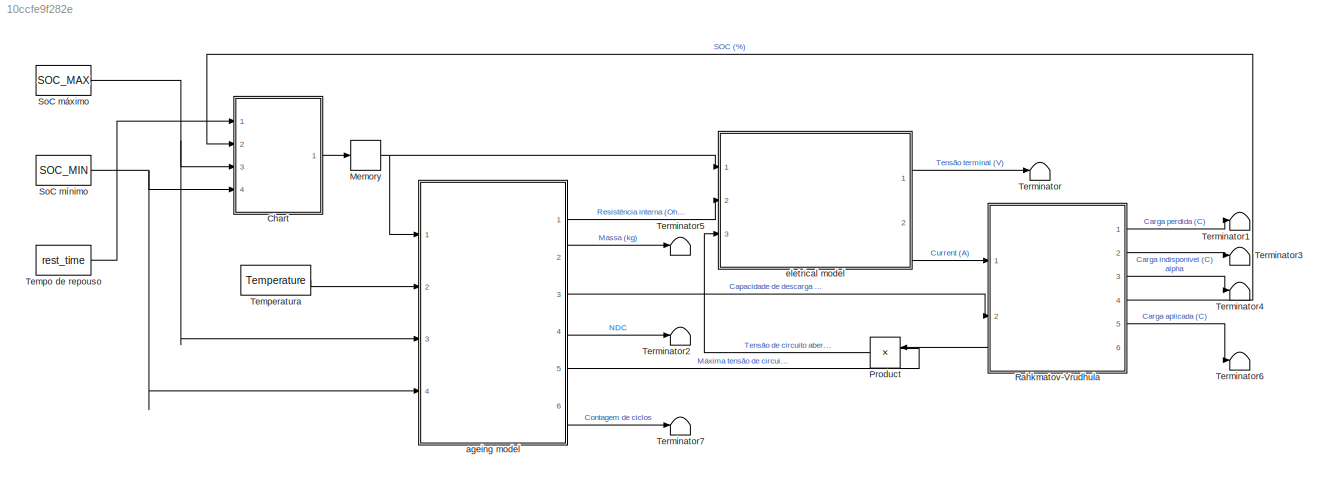
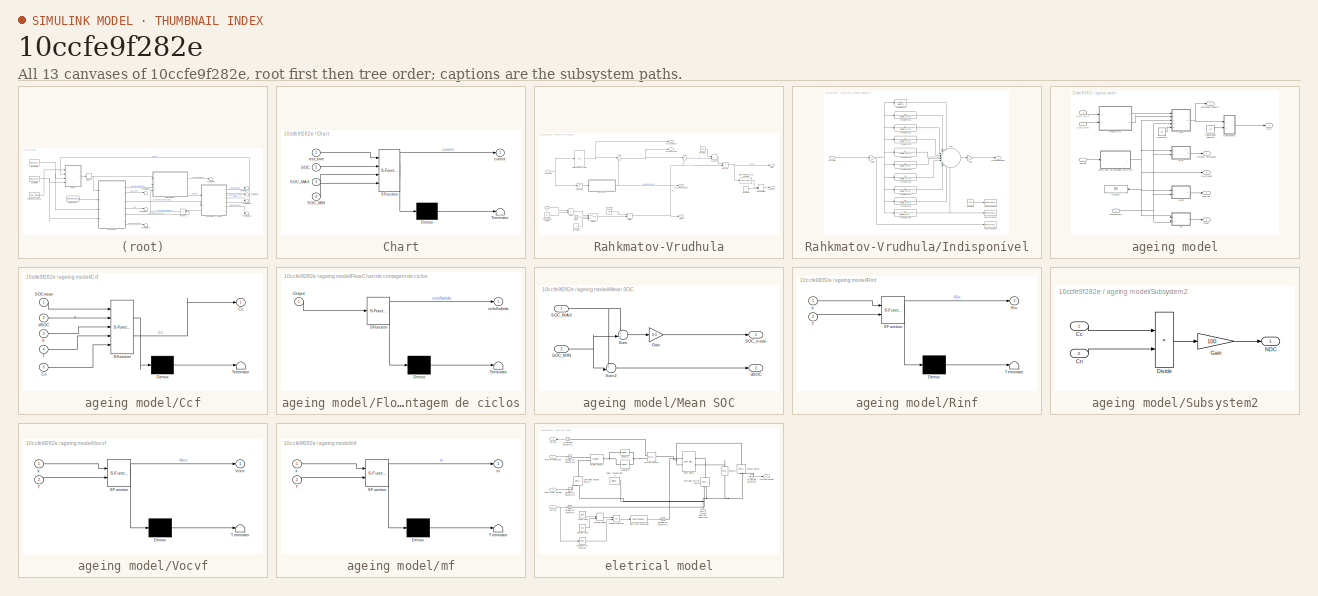
[diagram: thumbnail index - all 13 canvases of the model, root first then tree order]
MODEL slx_10ccfe9f282e
KIND model
CONFIG AbsTol = auto
CONFIG EnableMultiTasking = off
CONFIG FixedStep = 1
CONFIG MaxStep = 1
CONFIG MinStep = auto
CONFIG PostLoadFcn = load('input_modelo_bateria.mat')
CONFIG RelTol = 1e-3
CONFIG SampleTimeConstraint = Unconstrained
CONFIG SolverName = VariableStepAuto
CONFIG StartTime = 0.0
CONFIG StopTime = 7e4
BLOCK [SubSystem] Chart
  ErrorFcn = Stateflow.Translate.translate
  PermitHierarchicalResolution = ExplicitOnly
  PortSchema = {"entries":[{"content":{"sides":[{"content":{"connectorIds":["In2","In3","In4","In1"]},"type":"ConnectorPlacement.EquallySpacedRectSide","uuid":"b79e6304-446b-4da0-b841-6a7e0125cfd5"},{"content":{"connectorIds":["Out1"],"side":"RIGHT"},"type":"ConnectorPlacement.EquallySpacedRectSide","uuid":"907ab61a-1d0a-45c7-8983-f54ad408e9d5"},{"content":{"connectorIds":[],"side":"TOP"},"type":"ConnectorPlacem...<+258ch>
  Ports = [4, 1]
  RequestExecContextInheritance = off
  SFBlockType = Chart
  TreatAsAtomicUnit = on
BLOCK [Demux] Chart/ Demux 
  Outputs = 1
  Ports = [1, 1]
BLOCK [S-Function] Chart/ SFunction 
  EnableBusSupport = on
  FunctionName = sf_sfun
  PortCounts = [4 2]
  Ports = [4, 2]
  SFcnIsStateOwnerBlock = off
  SFunctionDeploymentMode = off
  Tag = Stateflow S-Function 6
BLOCK [Terminator] Chart/ Terminator 
BLOCK [Inport] Chart/SOC
  Port = 2
BLOCK [Inport] Chart/SOC_MAX
  Port = 3
BLOCK [Inport] Chart/SOC_MIN
  Port = 4
BLOCK [Outport] Chart/current
BLOCK [Inport] Chart/rest_time
BLOCK [Memory] Memory
BLOCK [Product] Product
  Ports = [2, 1]
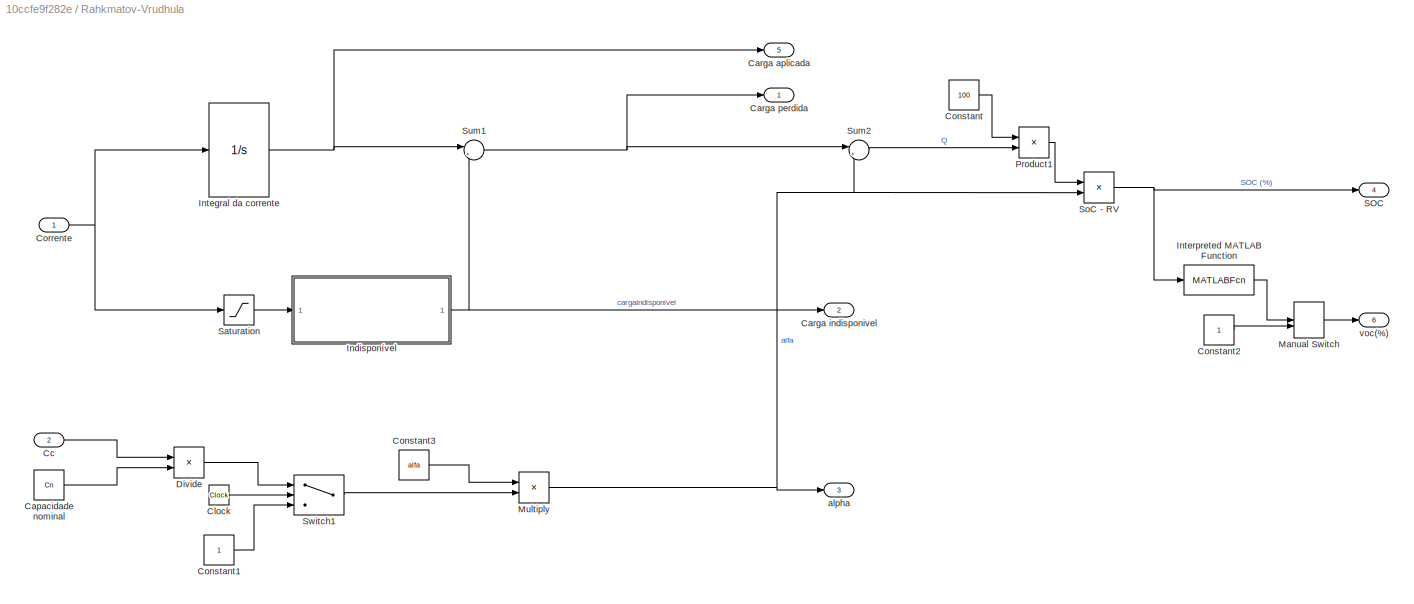
BLOCK [SubSystem] Rahkmatov-Vrudhula
  NameLocation = top
  PortSchema = {"entries":[{"content":{"sides":[{"content":{"connectorIds":["In1","In2","Out6"]},"type":"ConnectorPlacement.EquallySpacedRectSide","uuid":"83f3e873-db9f-47d1-b7c3-7eda48a10b32"},{"content":{"connectorIds":["Out1","Out2","Out3","Out4","Out5"],"side":"RIGHT"},"type":"ConnectorPlacement.EquallySpacedRectSide","uuid":"48ac6012-cdb4-4752-bc48-afa50bea9f0a"},{"content":{"connectorIds":[],"side":"TOP"},...<+281ch>
  Ports = [2, 6]
  RequestExecContextInheritance = off
BLOCK [Constant] Rahkmatov-Vrudhula/Capacidade nominal
  Value = Cn
BLOCK [Outport] Rahkmatov-Vrudhula/Carga aplicada
  Port = 5
  VectorParamsAs1DForOutWhenUnconnected = off
BLOCK [Outport] Rahkmatov-Vrudhula/Carga indisponivel
  Port = 2
  VectorParamsAs1DForOutWhenUnconnected = off
BLOCK [Outport] Rahkmatov-Vrudhula/Carga perdida
  VectorParamsAs1DForOutWhenUnconnected = off
BLOCK [Inport] Rahkmatov-Vrudhula/Cc
  Port = 2
BLOCK [Clock] Rahkmatov-Vrudhula/Clock
BLOCK [Constant] Rahkmatov-Vrudhula/Constant
  Value = 100
BLOCK [Constant] Rahkmatov-Vrudhula/Constant1
BLOCK [Constant] Rahkmatov-Vrudhula/Constant2
BLOCK [Constant] Rahkmatov-Vrudhula/Constant3
  Value = alfa
BLOCK [Inport] Rahkmatov-Vrudhula/Corrente
BLOCK [Product] Rahkmatov-Vrudhula/Divide
  Inputs = */
  Ports = [2, 1]
BLOCK [SubSystem] Rahkmatov-Vrudhula/Indisponível
  Ports = [1, 1]
  RequestExecContextInheritance = off
BLOCK [Constant] Rahkmatov-Vrudhula/Indisponível/Constant3
  Value = beta
BLOCK [Gain] Rahkmatov-Vrudhula/Indisponível/Gain
  Gain = 2
BLOCK [Gain] Rahkmatov-Vrudhula/Indisponível/Gain1
BLOCK [Sum] Rahkmatov-Vrudhula/Indisponível/Sum
  Inputs = |++++++++++
  Ports = [10, 1]
BLOCK [ToWorkspace] Rahkmatov-Vrudhula/Indisponível/To Workspace1
  FixptAsFi = on
  MaxDataPoints = inf
  Ports = [1]
  SampleTime = -1
  Save2DSignal = 2-D array (concatenate along first dimension)
  VariableName = correnteout
BLOCK [ToWorkspace] Rahkmatov-Vrudhula/Indisponível/To Workspace2
  FixptAsFi = on
  MaxDataPoints = inf
  Ports = [1]
  SampleTime = -1
  Save2DSignal = 2-D array (concatenate along first dimension)
  VariableName = transferfcn
BLOCK [ToWorkspace] Rahkmatov-Vrudhula/Indisponível/To Workspace3
  FixptAsFi = on
  MaxDataPoints = inf
  Ports = [1]
  SampleTime = -1
  Save2DSignal = 2-D array (concatenate along first dimension)
  VariableName = betaout
BLOCK [TransferFcn] Rahkmatov-Vrudhula/Indisponível/Transfer Fcn
  Denominator = [1 beta^2]
BLOCK [TransferFcn] Rahkmatov-Vrudhula/Indisponível/Transfer Fcn1
  Denominator = [1 beta^2*2^2]
BLOCK [TransferFcn] Rahkmatov-Vrudhula/Indisponível/Transfer Fcn2
  Denominator = [1 beta^2*3^2]
BLOCK [TransferFcn] Rahkmatov-Vrudhula/Indisponível/Transfer Fcn3
  Denominator = [1 beta^2*4^2]
BLOCK [TransferFcn] Rahkmatov-Vrudhula/Indisponível/Transfer Fcn4
  Denominator = [1 beta^2*5^2]
BLOCK [TransferFcn] Rahkmatov-Vrudhula/Indisponível/Transfer Fcn5
  Denominator = [1 beta^2*6^2]
BLOCK [TransferFcn] Rahkmatov-Vrudhula/Indisponível/Transfer Fcn6
  Denominator = [1 beta^2*7^2]
BLOCK [TransferFcn] Rahkmatov-Vrudhula/Indisponível/Transfer Fcn7
  Denominator = [1 beta^2*8^2]
BLOCK [TransferFcn] Rahkmatov-Vrudhula/Indisponível/Transfer Fcn8
  Denominator = [1 beta^2*9^2]
BLOCK [TransferFcn] Rahkmatov-Vrudhula/Indisponível/Transfer Fcn9
  Denominator = [1 beta^2*10^2]
BLOCK [Outport] Rahkmatov-Vrudhula/Indisponível/cargaIndisponivel
  VectorParamsAs1DForOutWhenUnconnected = off
BLOCK [Inport] Rahkmatov-Vrudhula/Indisponível/corrente
BLOCK [Integrator] Rahkmatov-Vrudhula/Integral da corrente
  LimitOutput = on
  LowerSaturationLimit = -alfa
  Ports = [1, 1]
  UpperSaturationLimit = 0
BLOCK [MATLABFcn] Rahkmatov-Vrudhula/Interpreted MATLAB Function
  MATLABFcn = feval(voc_fit,u)
  Ports = [1, 1]
BLOCK [ManualSwitch] Rahkmatov-Vrudhula/Manual Switch
BLOCK [Product] Rahkmatov-Vrudhula/Multiply
  Ports = [2, 1]
BLOCK [Product] Rahkmatov-Vrudhula/Product1
  Ports = [2, 1]
BLOCK [Outport] Rahkmatov-Vrudhula/SOC
  Port = 4
BLOCK [Saturate] Rahkmatov-Vrudhula/Saturation
  LowerLimit = -Inf
  UpperLimit = 0
BLOCK [Product] Rahkmatov-Vrudhula/SoC - RV
  Inputs = */
  Ports = [2, 1]
BLOCK [Sum] Rahkmatov-Vrudhula/Sum1
  Inputs = |++
  Ports = [2, 1]
BLOCK [Sum] Rahkmatov-Vrudhula/Sum2
  Inputs = |++
  Ports = [2, 1]
BLOCK [Switch] Rahkmatov-Vrudhula/Switch1
  InputSameDT = off
  SaturateOnIntegerOverflow = off
BLOCK [Outport] Rahkmatov-Vrudhula/alpha
  Port = 3
  VectorParamsAs1DForOutWhenUnconnected = off
BLOCK [Outport] Rahkmatov-Vrudhula/voc(%)
  Port = 6
BLOCK [Constant] SoC máximo
  Value = SOC_MAX
BLOCK [Constant] SoC mínimo
  Value = SOC_MIN
BLOCK [Constant] Temperatura
  Value = Temperature
BLOCK [Constant] Tempo de repouso
  Value = rest_time
BLOCK [Terminator] Terminator
BLOCK [Terminator] Terminator1
BLOCK [Terminator] Terminator2
BLOCK [Terminator] Terminator3
BLOCK [Terminator] Terminator4
BLOCK [Terminator] Terminator5
BLOCK [Terminator] Terminator6
BLOCK [Terminator] Terminator7
BLOCK [SubSystem] ageing model
  NameLocation = top
  Ports = [4, 6]
  RequestExecContextInheritance = off
BLOCK [Constant] ageing model/Capacidade nominal
  Value = Cn
BLOCK [SubSystem] ageing model/Ccf
  ErrorFcn = Stateflow.Translate.translate
  PermitHierarchicalResolution = ExplicitOnly
  Ports = [5, 1]
  RequestExecContextInheritance = off
  SFBlockType = MATLAB Function
  TreatAsAtomicUnit = on
BLOCK [Demux] ageing model/Ccf/ Demux 
  Outputs = 1
  Ports = [1, 1]
BLOCK [S-Function] ageing model/Ccf/ SFunction 
  EnableBusSupport = on
  FunctionName = sf_sfun
  PortCounts = [5 2]
  Ports = [5, 2]
  SFcnIsStateOwnerBlock = off
  SFunctionDeploymentMode = off
  Tag = Stateflow S-Function 2
BLOCK [Terminator] ageing model/Ccf/ Terminator 
BLOCK [Outport] ageing model/Ccf/Cc
BLOCK [Inport] ageing model/Ccf/Cn
  Port = 5
BLOCK [Inport] ageing model/Ccf/SOCmean
BLOCK [Inport] ageing model/Ccf/T
  Port = 4
BLOCK [Inport] ageing model/Ccf/dSOC
  Port = 2
BLOCK [Inport] ageing model/Ccf/k
  Port = 3
BLOCK [Constant] ageing model/Constant2
  Value = Cn
BLOCK [Display] ageing model/Display
  Decimation = 1
  Ports = [1]
BLOCK [SubSystem] ageing model/FlowChart de contagem de ciclos
  ErrorFcn = Stateflow.Translate.translate
  PermitHierarchicalResolution = ExplicitOnly
  Ports = [1, 1]
  RequestExecContextInheritance = off
  SFBlockType = Chart
  TreatAsAtomicUnit = on
BLOCK [Demux] ageing model/FlowChart de contagem de ciclos/ Demux 
  Outputs = 1
  Ports = [1, 1]
BLOCK [S-Function] ageing model/FlowChart de contagem de ciclos/ SFunction 
  EnableBusSupport = on
  FunctionName = sf_sfun
  PortCounts = [1 2]
  Ports = [1, 2]
  SFcnIsStateOwnerBlock = off
  SFunctionDeploymentMode = off
  Tag = Stateflow S-Function 3
BLOCK [Terminator] ageing model/FlowChart de contagem de ciclos/ Terminator 
BLOCK [Outport] ageing model/FlowChart de contagem de ciclos/cicloSubida
  VectorParamsAs1DForOutWhenUnconnected = off
BLOCK [Inport] ageing model/FlowChart de contagem de ciclos/iOutput
BLOCK [SubSystem] ageing model/Mean SOC
  Ports = [2, 2]
  RequestExecContextInheritance = off
BLOCK [Gain] ageing model/Mean SOC/Gain
  Gain = 0.5
BLOCK [Inport] ageing model/Mean SOC/SOC_MAX
BLOCK [Inport] ageing model/Mean SOC/SOC_MIN
  Port = 2
BLOCK [Outport] ageing model/Mean SOC/SOC_mean
BLOCK [Sum] ageing model/Mean SOC/Sum
  Inputs = ++|
  Ports = [2, 1]
BLOCK [Sum] ageing model/Mean SOC/Sum2
  Inputs = +-|
  Ports = [2, 1]
BLOCK [Outport] ageing model/Mean SOC/dSOC
  Port = 2
BLOCK [Outport] ageing model/NDC
  Port = 4
BLOCK [SubSystem] ageing model/Rinf
  ErrorFcn = Stateflow.Translate.translate
  PermitHierarchicalResolution = ExplicitOnly
  Ports = [2, 1]
  RequestExecContextInheritance = off
  SFBlockType = MATLAB Function
  TreatAsAtomicUnit = on
BLOCK [Demux] ageing model/Rinf/ Demux 
  Outputs = 1
  Ports = [1, 1]
BLOCK [S-Function] ageing model/Rinf/ SFunction 
  EnableBusSupport = on
  FunctionName = sf_sfun
  PortCounts = [2 2]
  Ports = [2, 2]
  SFcnIsStateOwnerBlock = off
  SFunctionDeploymentMode = off
  Tag = Stateflow S-Function 1
BLOCK [Terminator] ageing model/Rinf/ Terminator 
BLOCK [Outport] ageing model/Rinf/Rin
BLOCK [Inport] ageing model/Rinf/T
  Port = 2
BLOCK [Inport] ageing model/Rinf/k
BLOCK [Inport] ageing model/SOC_MAX
  Port = 3
BLOCK [Inport] ageing model/SOC_MIN
  Port = 4
BLOCK [SubSystem] ageing model/Subsystem2
  Ports = [2, 1]
  RequestExecContextInheritance = off
BLOCK [Inport] ageing model/Subsystem2/Cc
BLOCK [Inport] ageing model/Subsystem2/Cn
  Port = 2
BLOCK [Product] ageing model/Subsystem2/Divide
  Inputs = */
  Ports = [2, 1]
BLOCK [Gain] ageing model/Subsystem2/Gain
  Gain = 100
BLOCK [Outport] ageing model/Subsystem2/NDC
BLOCK [SubSystem] ageing model/Vocvf
  ErrorFcn = Stateflow.Translate.translate
  PermitHierarchicalResolution = ExplicitOnly
  Ports = [2, 1]
  RequestExecContextInheritance = off
  SFBlockType = MATLAB Function
  TreatAsAtomicUnit = on
BLOCK [Demux] ageing model/Vocvf/ Demux 
  Outputs = 1
  Ports = [1, 1]
BLOCK [S-Function] ageing model/Vocvf/ SFunction 
  EnableBusSupport = on
  FunctionName = sf_sfun
  PortCounts = [2 2]
  Ports = [2, 2]
  SFcnIsStateOwnerBlock = off
  SFunctionDeploymentMode = off
  Tag = Stateflow S-Function 4
BLOCK [Terminator] ageing model/Vocvf/ Terminator 
BLOCK [Inport] ageing model/Vocvf/T
  Port = 2
BLOCK [Outport] ageing model/Vocvf/Vocv
BLOCK [Inport] ageing model/Vocvf/k
BLOCK [Inport] ageing model/current
BLOCK [Outport] ageing model/cycle count
  NameLocation = right
  Port = 6
BLOCK [Outport] ageing model/discharge capacity
  Port = 3
BLOCK [Outport] ageing model/internal resistance
  NameLocation = right
BLOCK [Outport] ageing model/mass
  Port = 2
BLOCK [Outport] ageing model/max voc
  Port = 5
BLOCK [SubSystem] ageing model/mf
  ErrorFcn = Stateflow.Translate.translate
  PermitHierarchicalResolution = ExplicitOnly
  Ports = [2, 1]
  RequestExecContextInheritance = off
  SFBlockType = MATLAB Function
  TreatAsAtomicUnit = on
BLOCK [Demux] ageing model/mf/ Demux 
  Outputs = 1
  Ports = [1, 1]
BLOCK [S-Function] ageing model/mf/ SFunction 
  EnableBusSupport = on
  FunctionName = sf_sfun
  PortCounts = [2 2]
  Ports = [2, 2]
  SFcnIsStateOwnerBlock = off
  SFunctionDeploymentMode = off
  Tag = Stateflow S-Function 5
BLOCK [Terminator] ageing model/mf/ Terminator 
BLOCK [Inport] ageing model/mf/T
  Port = 2
BLOCK [Inport] ageing model/mf/k
BLOCK [Outport] ageing model/mf/m
BLOCK [Inport] ageing model/temperature
  Port = 2
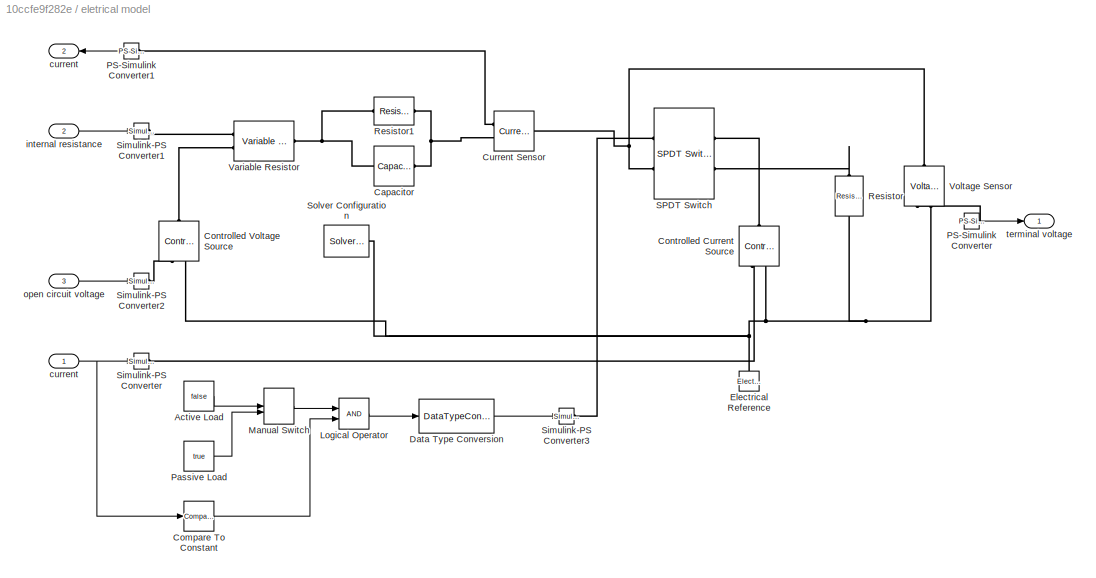
BLOCK [SubSystem] eletrical model
  NameLocation = top
  Ports = [3, 2]
  RequestExecContextInheritance = off
BLOCK [Constant] eletrical model/Active Load
  Value = false
BLOCK [Reference] eletrical model/Capacitor  REF=fl_lib/Electrical/Electrical Elements/Capacitor
  Ports = [0, 0, 0, 0, 0, 1, 1]
  SourceBlock = fl_lib/Electrical/Electrical Elements/Capacitor
  SourceProductBaseCode = PW,SS,VE
  SourceType = Capacitor
BLOCK [Reference] eletrical model/Compare To Constant  REF=simulink/Logic and Bit
Operations/Compare
To Constant
  Ports = [1, 1]
  SourceBlock = simulink/Logic and Bit\nOperations/Compare\nTo Constant
  SourceProductBaseCode = SL
  SourceType = Compare To Constant
BLOCK [Reference] eletrical model/Controlled Current Source  REF=fl_lib/Electrical/Electrical Sources/Controlled Current
Source
  NameLocation = left
  Ports = [0, 0, 0, 0, 0, 1, 2]
  SourceBlock = fl_lib/Electrical/Electrical Sources/Controlled Current\nSource
  SourceProductBaseCode = PW,SS,VE
  SourceType = Controlled Current\nSource
BLOCK [Reference] eletrical model/Controlled Voltage Source  REF=fl_lib/Electrical/Electrical Sources/Controlled Voltage
Source
  NameLocation = right
  Ports = [0, 0, 0, 0, 0, 1, 2]
  SourceBlock = fl_lib/Electrical/Electrical Sources/Controlled Voltage\nSource
  SourceProductBaseCode = PW,SS,VE
  SourceType = Controlled Voltage\nSource
BLOCK [Reference] eletrical model/Current Sensor  REF=fl_lib/Electrical/Electrical Sensors/Current Sensor
  Ports = [0, 0, 0, 0, 0, 1, 2]
  SourceBlock = fl_lib/Electrical/Electrical Sensors/Current Sensor
  SourceProductBaseCode = PW,SS,VE
  SourceType = Current Sensor
BLOCK [DataTypeConversion] eletrical model/Data Type Conversion
  RndMeth = Floor
  SaturateOnIntegerOverflow = off
BLOCK [Reference] eletrical model/Electrical Reference  REF=fl_lib/Electrical/Electrical Elements/Electrical Reference
  NameLocation = right
  Ports = [0, 0, 0, 0, 0, 1]
  SourceBlock = fl_lib/Electrical/Electrical Elements/Electrical Reference
  SourceProductBaseCode = PW,SS,VE
  SourceType = Electrical Reference
BLOCK [Logic] eletrical model/Logical Operator
  AllPortsSameDT = off
  OutDataTypeStr = boolean
  Ports = [2, 1]
BLOCK [ManualSwitch] eletrical model/Manual Switch
BLOCK [Reference] eletrical model/PS-Simulink Converter  REF=nesl_utility/PS-Simulink
Converter
  Ports = [0, 1, 0, 0, 0, 1]
  SourceBlock = nesl_utility/PS-Simulink\nConverter
  SourceProductBaseCode = SS,PW,VE
  SourceType = PS-Simulink\nConverter
BLOCK [Reference] eletrical model/PS-Simulink Converter1  REF=nesl_utility/PS-Simulink
Converter
  Ports = [0, 1, 0, 0, 0, 1]
  SourceBlock = nesl_utility/PS-Simulink\nConverter
  SourceProductBaseCode = SS,PW,VE
  SourceType = PS-Simulink\nConverter
BLOCK [Constant] eletrical model/Passive Load
  Value = true
BLOCK [Reference] eletrical model/Resistor  REF=ee_lib/Passive/Resistor
  NameLocation = left
  Ports = [0, 0, 0, 0, 0, 1, 1]
  SourceBlock = ee_lib/Passive/Resistor
  SourceProductBaseCode = PS
  SourceType = Resistor
BLOCK [Reference] eletrical model/Resistor1  REF=fl_lib/Electrical/Electrical Elements/Resistor
  Ports = [0, 0, 0, 0, 0, 1, 1]
  SourceBlock = fl_lib/Electrical/Electrical Elements/Resistor
  SourceProductBaseCode = PW,SS,VE
  SourceType = Resistor
BLOCK [Reference] eletrical model/SPDT Switch  REF=ee_lib/Switches & Breakers/SPDT Switch
  Ports = [0, 0, 0, 0, 0, 2, 2]
  SourceBlock = ee_lib/Switches & Breakers/SPDT Switch
  SourceProductBaseCode = PS
  SourceType = SPDT Switch
BLOCK [Reference] eletrical model/Simulink-PS Converter  REF=nesl_utility/Simulink-PS
Converter
  Ports = [1, 0, 0, 0, 0, 0, 1]
  SourceBlock = nesl_utility/Simulink-PS\nConverter
  SourceProductBaseCode = SS,PW,VE
  SourceType = Simulink-PS\nConverter
BLOCK [Reference] eletrical model/Simulink-PS Converter1  REF=nesl_utility/Simulink-PS
Converter
  Ports = [1, 0, 0, 0, 0, 0, 1]
  SourceBlock = nesl_utility/Simulink-PS\nConverter
  SourceProductBaseCode = SS,PW,VE
  SourceType = Simulink-PS\nConverter
BLOCK [Reference] eletrical model/Simulink-PS Converter2  REF=nesl_utility/Simulink-PS
Converter
  Ports = [1, 0, 0, 0, 0, 0, 1]
  SourceBlock = nesl_utility/Simulink-PS\nConverter
  SourceProductBaseCode = SS,PW,VE
  SourceType = Simulink-PS\nConverter
BLOCK [Reference] eletrical model/Simulink-PS Converter3  REF=nesl_utility/Simulink-PS
Converter
  Ports = [1, 0, 0, 0, 0, 0, 1]
  SourceBlock = nesl_utility/Simulink-PS\nConverter
  SourceProductBaseCode = SS,PW,VE
  SourceType = Simulink-PS\nConverter
BLOCK [Reference] eletrical model/Solver Configuration  REF=nesl_utility/Solver
Configuration
  Ports = [0, 0, 0, 0, 0, 0, 1]
  SourceBlock = nesl_utility/Solver\nConfiguration
  SourceProductBaseCode = SS,PW,VE
  SourceType = Solver\nConfiguration
BLOCK [Reference] eletrical model/Variable Resistor  REF=fl_lib/Electrical/Electrical Elements/Variable Resistor
  Ports = [0, 0, 0, 0, 0, 2, 1]
  SourceBlock = fl_lib/Electrical/Electrical Elements/Variable Resistor
  SourceProductBaseCode = PW,SS,VE
  SourceType = Variable Resistor
BLOCK [Reference] eletrical model/Voltage Sensor  REF=fl_lib/Electrical/Electrical Sensors/Voltage Sensor
  NameLocation = right
  Ports = [0, 0, 0, 0, 0, 1, 2]
  SourceBlock = fl_lib/Electrical/Electrical Sensors/Voltage Sensor
  SourceProductBaseCode = PW,SS,VE
  SourceType = Voltage Sensor
BLOCK [Outport] eletrical model/current
  Port = 2
BLOCK [Inport] eletrical model/current 
BLOCK [Inport] eletrical model/internal resistance
  Port = 2
BLOCK [Inport] eletrical model/open circuit voltage
  Port = 3
BLOCK [Outport] eletrical model/terminal voltage
LINE Chart:1 -> Memory:1
NET Memory:1 -> ageing model:1, eletrical model:1
LINE Product:1 -> eletrical model:3
LINE Rahkmatov-Vrudhula/Capacidade nominal:1 -> Rahkmatov-Vrudhula/Divide:2
LINE Rahkmatov-Vrudhula/Cc:1 -> Rahkmatov-Vrudhula/Divide:1
LINE Rahkmatov-Vrudhula/Clock:1 -> Rahkmatov-Vrudhula/Switch1:2
LINE Rahkmatov-Vrudhula/Constant1:1 -> Rahkmatov-Vrudhula/Switch1:3
LINE Rahkmatov-Vrudhula/Constant2:1 -> Rahkmatov-Vrudhula/Manual Switch:2
LINE Rahkmatov-Vrudhula/Constant3:1 -> Rahkmatov-Vrudhula/Multiply:1
LINE Rahkmatov-Vrudhula/Constant:1 -> Rahkmatov-Vrudhula/Product1:1
NET Rahkmatov-Vrudhula/Corrente:1 -> Rahkmatov-Vrudhula/Integral da corrente:1, Rahkmatov-Vrudhula/Saturation:1
LINE Rahkmatov-Vrudhula/Divide:1 -> Rahkmatov-Vrudhula/Switch1:1
LINE Rahkmatov-Vrudhula/Indisponível/Constant3:1 -> Rahkmatov-Vrudhula/Indisponível/To Workspace3:1
NET Rahkmatov-Vrudhula/Indisponível/Gain1:1 -> Rahkmatov-Vrudhula/Indisponível/To Workspace1:1, Rahkmatov-Vrudhula/Indisponível/Transfer Fcn1:1, Rahkmatov-Vrudhula/Indisponível/Transfer Fcn2:1, Rahkmatov-Vrudhula/Indisponível/Transfer Fcn3:1, Rahkmatov-Vrudhula/Indisponível/Transfer Fcn4:1, Rahkmatov-Vrudhula/Indisponível/Transfer Fcn5:1, Rahkmatov-Vrudhula/Indisponível/Transfer Fcn6:1, Rahkmatov-Vrudhula/Indisponível/Transfer Fcn7:1, Rahkmatov-Vrudhula/Indisponível/Transfer Fcn8:1, Rahkmatov-Vrudhula/Indisponível/Transfer Fcn9:1, Rahkmatov-Vrudhula/Indisponível/Transfer Fcn:1
LINE Rahkmatov-Vrudhula/Indisponível/Gain:1 -> Rahkmatov-Vrudhula/Indisponível/cargaIndisponivel:1
LINE Rahkmatov-Vrudhula/Indisponível/Sum:1 -> Rahkmatov-Vrudhula/Indisponível/Gain:1
LINE Rahkmatov-Vrudhula/Indisponível/Transfer Fcn1:1 -> Rahkmatov-Vrudhula/Indisponível/Sum:2
LINE Rahkmatov-Vrudhula/Indisponível/Transfer Fcn2:1 -> Rahkmatov-Vrudhula/Indisponível/Sum:3
LINE Rahkmatov-Vrudhula/Indisponível/Transfer Fcn3:1 -> Rahkmatov-Vrudhula/Indisponível/Sum:4
LINE Rahkmatov-Vrudhula/Indisponível/Transfer Fcn4:1 -> Rahkmatov-Vrudhula/Indisponível/Sum:5
LINE Rahkmatov-Vrudhula/Indisponível/Transfer Fcn5:1 -> Rahkmatov-Vrudhula/Indisponível/Sum:6
LINE Rahkmatov-Vrudhula/Indisponível/Transfer Fcn6:1 -> Rahkmatov-Vrudhula/Indisponível/Sum:7
LINE Rahkmatov-Vrudhula/Indisponível/Transfer Fcn7:1 -> Rahkmatov-Vrudhula/Indisponível/Sum:8
LINE Rahkmatov-Vrudhula/Indisponível/Transfer Fcn8:1 -> Rahkmatov-Vrudhula/Indisponível/Sum:9
NET Rahkmatov-Vrudhula/Indisponível/Transfer Fcn9:1 -> Rahkmatov-Vrudhula/Indisponível/Sum:10, Rahkmatov-Vrudhula/Indisponível/To Workspace2:1
LINE Rahkmatov-Vrudhula/Indisponível/Transfer Fcn:1 -> Rahkmatov-Vrudhula/Indisponível/Sum:1
LINE Rahkmatov-Vrudhula/Indisponível/corrente:1 -> Rahkmatov-Vrudhula/Indisponível/Gain1:1
NET Rahkmatov-Vrudhula/Indisponível:1 -> Rahkmatov-Vrudhula/Carga indisponivel:1, Rahkmatov-Vrudhula/Sum1:2
NET Rahkmatov-Vrudhula/Integral da corrente:1 -> Rahkmatov-Vrudhula/Carga aplicada:1, Rahkmatov-Vrudhula/Sum1:1
LINE Rahkmatov-Vrudhula/Interpreted MATLAB Function:1 -> Rahkmatov-Vrudhula/Manual Switch:1
LINE Rahkmatov-Vrudhula/Manual Switch:1 -> Rahkmatov-Vrudhula/voc(%):1
NET Rahkmatov-Vrudhula/Multiply:1 -> Rahkmatov-Vrudhula/SoC - RV:2, Rahkmatov-Vrudhula/Sum2:2, Rahkmatov-Vrudhula/alpha:1
LINE Rahkmatov-Vrudhula/Product1:1 -> Rahkmatov-Vrudhula/SoC - RV:1
LINE Rahkmatov-Vrudhula/Saturation:1 -> Rahkmatov-Vrudhula/Indisponível:1
NET Rahkmatov-Vrudhula/SoC - RV:1 -> Rahkmatov-Vrudhula/Interpreted MATLAB Function:1, Rahkmatov-Vrudhula/SOC:1
NET Rahkmatov-Vrudhula/Sum1:1 -> Rahkmatov-Vrudhula/Carga perdida:1, Rahkmatov-Vrudhula/Sum2:1
LINE Rahkmatov-Vrudhula/Sum2:1 -> Rahkmatov-Vrudhula/Product1:2
LINE Rahkmatov-Vrudhula/Switch1:1 -> Rahkmatov-Vrudhula/Multiply:2
LINE Rahkmatov-Vrudhula:1 -> Terminator1:1
LINE Rahkmatov-Vrudhula:2 -> Terminator3:1
LINE Rahkmatov-Vrudhula:3 -> Terminator4:1
LINE Rahkmatov-Vrudhula:4 -> Chart:2
LINE Rahkmatov-Vrudhula:5 -> Terminator6:1
LINE Rahkmatov-Vrudhula:6 -> Product:1
NET SoC máximo:1 -> Chart:3, ageing model:3
NET SoC mínimo:1 -> Chart:4, ageing model:4
LINE Temperatura:1 -> ageing model:2
LINE Tempo de repouso:1 -> Chart:1
LINE ageing model/Capacidade nominal:1 -> ageing model/Subsystem2:2
NET ageing model/Ccf:1 -> ageing model/Subsystem2:1, ageing model/discharge capacity:1
LINE ageing model/Constant2:1 -> ageing model/Ccf:5
NET ageing model/FlowChart de contagem de ciclos:1 -> ageing model/Ccf:3, ageing model/Display:1, ageing model/Rinf:1, ageing model/Vocvf:1, ageing model/cycle count:1, ageing model/mf:1
LINE ageing model/Mean SOC/Gain:1 -> ageing model/Mean SOC/SOC_mean:1
NET ageing model/Mean SOC/SOC_MAX:1 -> ageing model/Mean SOC/Sum2:1, ageing model/Mean SOC/Sum:1
NET ageing model/Mean SOC/SOC_MIN:1 -> ageing model/Mean SOC/Sum2:2, ageing model/Mean SOC/Sum:2
LINE ageing model/Mean SOC/Sum2:1 -> ageing model/Mean SOC/dSOC:1
LINE ageing model/Mean SOC/Sum:1 -> ageing model/Mean SOC/Gain:1
LINE ageing model/Mean SOC:1 -> ageing model/Ccf:1
LINE ageing model/Mean SOC:2 -> ageing model/Ccf:2
LINE ageing model/Rinf:1 -> ageing model/internal resistance:1
LINE ageing model/SOC_MAX:1 -> ageing model/Mean SOC:1
LINE ageing model/SOC_MIN:1 -> ageing model/Mean SOC:2
LINE ageing model/Subsystem2/Cc:1 -> ageing model/Subsystem2/Divide:1
LINE ageing model/Subsystem2/Cn:1 -> ageing model/Subsystem2/Divide:2
LINE ageing model/Subsystem2/Divide:1 -> ageing model/Subsystem2/Gain:1
LINE ageing model/Subsystem2/Gain:1 -> ageing model/Subsystem2/NDC:1
LINE ageing model/Subsystem2:1 -> ageing model/NDC:1
LINE ageing model/Vocvf:1 -> ageing model/max voc:1
LINE ageing model/current:1 -> ageing model/FlowChart de contagem de ciclos:1
LINE ageing model/mf:1 -> ageing model/mass:1
NET ageing model/temperature:1 -> ageing model/Ccf:4, ageing model/Rinf:2, ageing model/Vocvf:2, ageing model/mf:2
LINE ageing model:1 -> eletrical model:2
LINE ageing model:2 -> Terminator5:1
LINE ageing model:3 -> Rahkmatov-Vrudhula:2
LINE ageing model:4 -> Terminator2:1
LINE ageing model:5 -> Product:2
LINE ageing model:6 -> Terminator7:1
LINE eletrical model/Active Load:1 -> eletrical model/Manual Switch:1
LINE eletrical model/Compare To Constant:1 -> eletrical model/Logical Operator:2
LINE eletrical model/Data Type Conversion:1 -> eletrical model/Simulink-PS Converter3:1
LINE eletrical model/Logical Operator:1 -> eletrical model/Data Type Conversion:1
LINE eletrical model/Manual Switch:1 -> eletrical model/Logical Operator:1
LINE eletrical model/PS-Simulink Converter1:1 -> eletrical model/current:1
LINE eletrical model/PS-Simulink Converter:1 -> eletrical model/terminal voltage:1
LINE eletrical model/Passive Load:1 -> eletrical model/Manual Switch:2
NET eletrical model/current :1 -> eletrical model/Compare To Constant:1, eletrical model/Simulink-PS Converter:1
LINE eletrical model/internal resistance:1 -> eletrical model/Simulink-PS Converter1:1
LINE eletrical model/open circuit voltage:1 -> eletrical model/Simulink-PS Converter2:1
LINE eletrical model:1 -> Terminator:1
LINE eletrical model:2 -> Rahkmatov-Vrudhula:1
PNET net1: eletrical model/Capacitor:LConn1 -- eletrical model/Resistor1:LConn1 -- eletrical model/Variable Resistor:RConn1
PNET net2: eletrical model/Capacitor:RConn1 -- eletrical model/Current Sensor:RConn2 -- eletrical model/Resistor1:RConn1
PLINE eletrical model/Controlled Current Source:LConn1 -- eletrical model/SPDT Switch:RConn1
PLINE eletrical model/Controlled Current Source:RConn1 -- eletrical model/Simulink-PS Converter:RConn1
PNET net3: eletrical model/Controlled Current Source:RConn2 -- eletrical model/Controlled Voltage Source:RConn2 -- eletrical model/Electrical Reference:LConn1 -- eletrical model/Resistor:RConn1 -- eletrical model/Solver Configuration:RConn1 -- eletrical model/Voltage Sensor:RConn2
PLINE eletrical model/Controlled Voltage Source:LConn1 -- eletrical model/Variable Resistor:LConn2
PLINE eletrical model/Controlled Voltage Source:RConn1 -- eletrical model/Simulink-PS Converter2:RConn1
PNET net4: eletrical model/Current Sensor:LConn1 -- eletrical model/SPDT Switch:LConn2 -- eletrical model/Voltage Sensor:LConn1
PLINE eletrical model/Current Sensor:RConn1 -- eletrical model/PS-Simulink Converter1:LConn1
PLINE eletrical model/PS-Simulink Converter:LConn1 -- eletrical model/Voltage Sensor:RConn1
PLINE eletrical model/Resistor:LConn1 -- eletrical model/SPDT Switch:RConn2
PLINE eletrical model/SPDT Switch:LConn1 -- eletrical model/Simulink-PS Converter3:RConn1
PLINE eletrical model/Simulink-PS Converter1:RConn1 -- eletrical model/Variable Resistor:LConn1
note: NET lines group one-source signal fan-out (src -> all destinations, sorted); 1:1 wires keep LINE; PNET lines group multi-terminal physical nets as a canonical sorted terminal list (undirected conserving connections); 2-terminal nets keep the pairwise PLINE form
CHART ageing model/Rinf states=1 transitions=1
  STATE_LABEL 'eML_blk_kernel()'
  STATE_LABEL 'SCRIPT:\nfunction Rin = fcn(k,T)\n\n       x = (k-9000)/6326;\n       y = (T-31.67)/10.57;\n       \n%        where x is normalized by mean 9000 and std 6326\n%        and where y is normalized by mean 31.67 and std 10.57\n% Coefficients (with 95% confidence bounds):\n       p00 =    0.003956;%  (0.003728, 0.004184)\n       p10 =   0.0006753;%  (0.0004339, 0.0009166)\n       p01 =  -1.804e-05;%  (-0.0001419,...<+779ch>'
CHART ageing model/Ccf states=1 transitions=1
  STATE_LABEL 'eML_blk_kernel()'
  STATE_LABEL 'SCRIPT:\nfunction Cc = fcn(SOCmean, dSOC,k,T,Cn)\n% Coeficients model Saxena2016\n        k1 = 3.25;\n        k2 = 3.25;\n        k3 = -2.25;\n% Coefficients (with 95% confidence bounds):\n       p00 =       56.02;%  (53.93, 58.1)\n       p10 =      -10.53;%  (-13.71, -7.36)\n       p01 =       0.869;%  (-0.7052, 2.443)\n       p20 =      -4.808;%  (-6.007, -3.609)\n       p11 =      -1.445;%  (-2.534, -0.35...<+681ch>'
CHART ageing model/FlowChart de contagem de ciclos states=4 transitions=7
  STATE_LABEL '<!DOCTYPE HTML PUBLIC "-//W3C//DTD HTML 4.0//EN" "http://www.w3.org/TR/REC-html40/strict.dtd">\n<html><head><meta name="qrichtext" content="1" /><style type="text/css">\np, li { white-space: pre-wrap; }\n</style></head><body style=" font-family:\'Helvetica\'; font-size:12px; font-weight:400; font-style:normal;">\n<p style=" margin-top:0px; margin-bottom:0px; margin-left:0px; margin-right:0px; -qt-block-...<+131ch>'
  STATE_LABEL 'Respouso'
  STATE_LABEL 'Descarregando'
  STATE_LABEL 'Carregando'
CHART ageing model/Vocvf states=1 transitions=1
  STATE_LABEL 'eML_blk_kernel()'
  STATE_LABEL 'SCRIPT:\nfunction Vocv = fcn(k,T)\n\n%Coefficients (with 95% confidence bounds):\n       p00 =       12.46;%  (12.4, 12.53)\n       p10 =      0.2911;%  (0.2589, 0.3233)\n       p01 =     0.03352;%  (-0.0006909, 0.06772)\n       p20 =      0.0383;%  (-0.0004375, 0.07703)\n       p11 =     0.02935;%  (-0.003774, 0.06248)\n       p02 =    -0.01441;%  (-0.06418, 0.03537)\n\n       x = (k-9000)/6326;\n       y = ...<+328ch>'
CHART ageing model/mf states=1 transitions=1
  STATE_LABEL 'eML_blk_kernel()'
  STATE_LABEL 'SCRIPT:\nfunction m = fcn(k,T)\n\n%Coefficients (with 95% confidence bounds):\n       p00 =       19.64;%  (19.58, 19.69)\n       p10 =     -0.5246;%  (-0.606, -0.4431)\n       p01 =    -0.08727;%  (-0.1277, -0.04686)\n       p20 =        0.06;%  (0.02923, 0.09077)\n       p11 =    -0.04133;%  (-0.0693, -0.01337)\n       p02 =    -0.04346;%  (-0.08301, -0.003916)\n       p30 =     0.02928;%  (-0.01177, 0.07...<+531ch>'
CHART Chart states=3 transitions=6
  STATE_LABEL 'Descarga\ncurrent=-40;\n'
  STATE_LABEL 'Repouso\ncurrent=0;'
  STATE_LABEL 'Recarga\ncurrent=60;'
CHART  states=0 transitions=0
CHART  states=0 transitions=0
CHART  states=0 transitions=0
CHART  states=0 transitions=0
CHART  states=0 transitions=0
CHART  states=0 transitions=0
